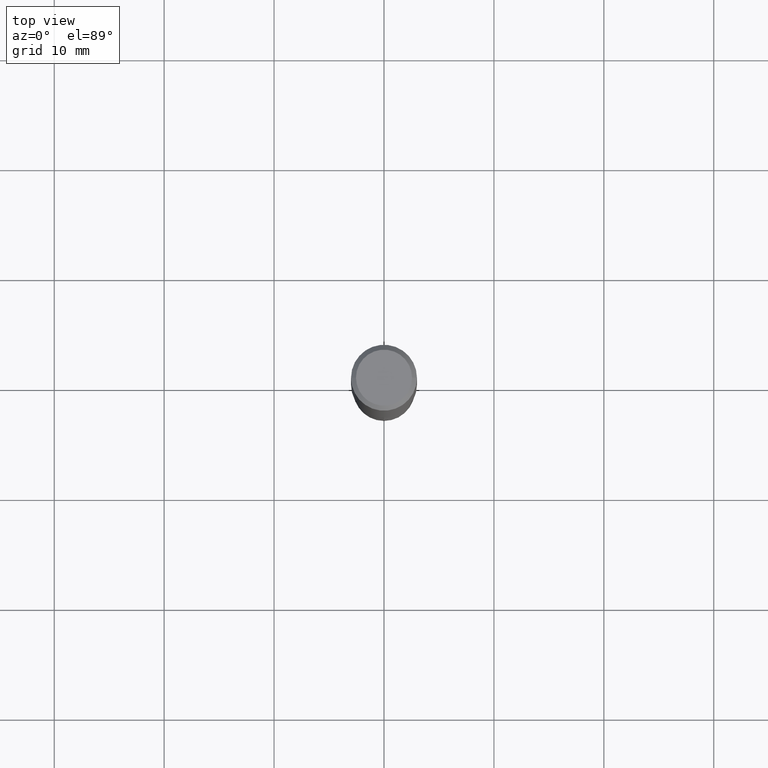
[diagram: clean part render]
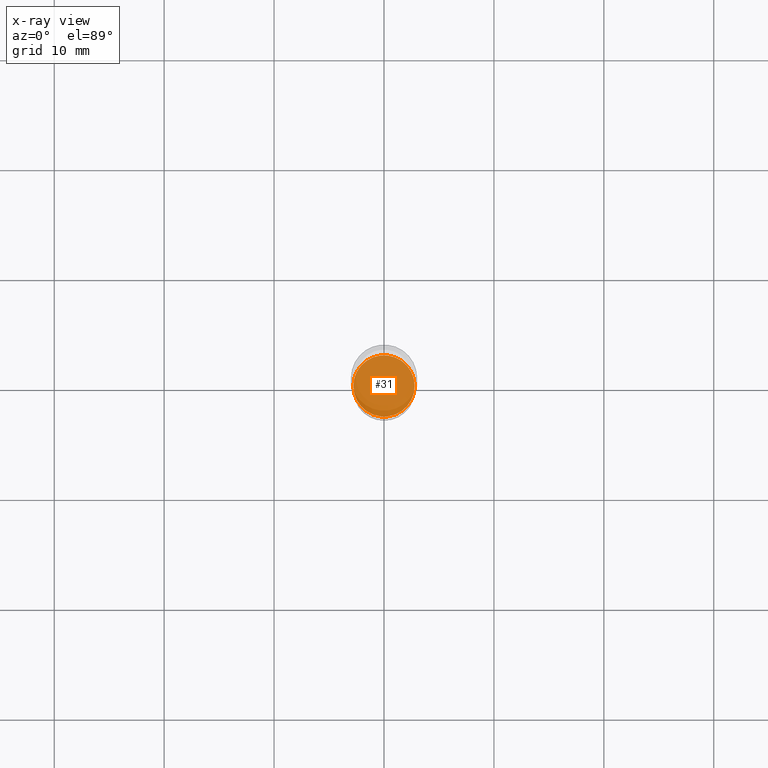
[diagram: x-ray — body ghosted, one internal face saturated and labeled with its STEP entity id]
A machine part, top view, then the same camera in x-ray: the body is ghosted and one INTERNAL B-rep face — a face not visible from any outside direction — is saturated and labeled: STEP entity #31.
In plain terms, the highlighted planar face has unit normal (-0, 0, 1).
Its self-contained STEP definition (entity closure, byte-faithful):
#12 = CARTESIAN_POINT ( 'NONE',  ( 4.197647205816786480E-29, -5.993127718124259199E-15, -1.716499999999999915 ) ) ;
#19 = AXIS2_PLACEMENT_3D ( 'NONE', #12, #363, #131 ) ;
#31 = ADVANCED_FACE ( 'NONE', ( #228 ), #311, .F. ) ;
#39 = DIRECTION ( 'NONE',  ( 1.000000000000000000, -6.982962677686265922E-15, 4.876176775795935793E-29 ) ) ;
#82 = ORIENTED_EDGE ( 'NONE', *, *, #435, .F. ) ;
#83 = CARTESIAN_POINT ( 'NONE',  ( 4.197647205816786480E-29, -5.993127718124259199E-15, -1.716499999999999915 ) ) ;
#131 = DIRECTION ( 'NONE',  ( 1.000000000000000000, -6.982962677686264344E-15, 0.000000000000000000 ) ) ;
#187 = CARTESIAN_POINT ( 'NONE',  ( 4.197647205816786480E-29, -5.993127718124259199E-15, -1.716499999999999915 ) ) ;
#197 = DIRECTION ( 'NONE',  ( -2.438088387897960049E-29, 3.491481338843145188E-15, 1.000000000000000000 ) ) ;
#214 = EDGE_CURVE ( 'NONE', #372, #282, #316, .T. ) ;
#228 = FACE_OUTER_BOUND ( 'NONE', #303, .T. ) ;
#248 = CARTESIAN_POINT ( 'NONE',  ( -0.1097500000000000003, -5.210657838453437943E-15, -1.716499999999999915 ) ) ;
#282 = VERTEX_POINT ( 'NONE', #248 ) ;
#303 = EDGE_LOOP ( 'NONE', ( #377, #82 ) ) ;
#311 = PLANE ( 'NONE',  #322 ) ;
#316 = CIRCLE ( 'NONE', #19, 0.1097500000000000003 ) ;
#322 = AXIS2_PLACEMENT_3D ( 'NONE', #187, #197, #39 ) ;
#343 = DIRECTION ( 'NONE',  ( 1.000000000000000000, -6.982962677686264344E-15, 0.000000000000000000 ) ) ;
#351 = CARTESIAN_POINT ( 'NONE',  ( 0.1097500000000000003, -6.759507872000326876E-15, -1.716499999999999915 ) ) ;
#359 = CIRCLE ( 'NONE', #433, 0.1097500000000000003 ) ;
#363 = DIRECTION ( 'NONE',  ( -2.445468806185136597E-29, 3.491481338843145583E-15, 1.000000000000000000 ) ) ;
#372 = VERTEX_POINT ( 'NONE', #351 ) ;
#377 = ORIENTED_EDGE ( 'NONE', *, *, #214, .F. ) ;
#391 = DIRECTION ( 'NONE',  ( -2.445468806185136597E-29, 3.491481338843145583E-15, 1.000000000000000000 ) ) ;
#433 = AXIS2_PLACEMENT_3D ( 'NONE', #83, #391, #343 ) ;
#435 = EDGE_CURVE ( 'NONE', #282, #372, #359, .T. ) ;